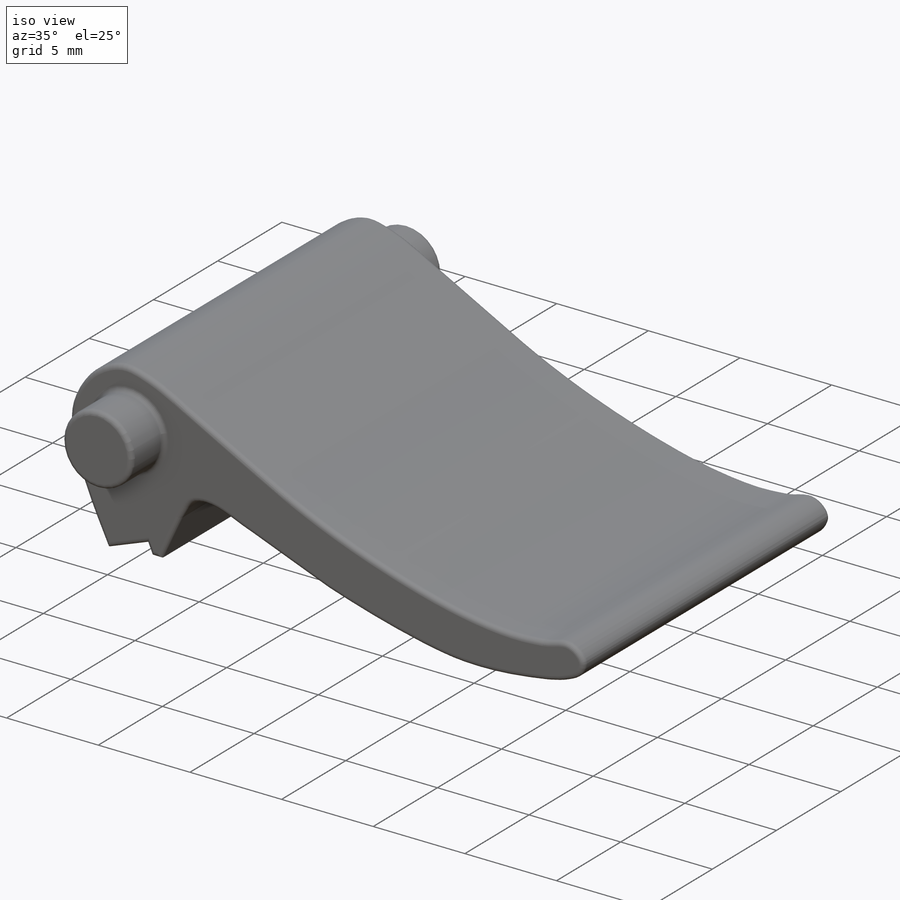
[diagram: iso view]
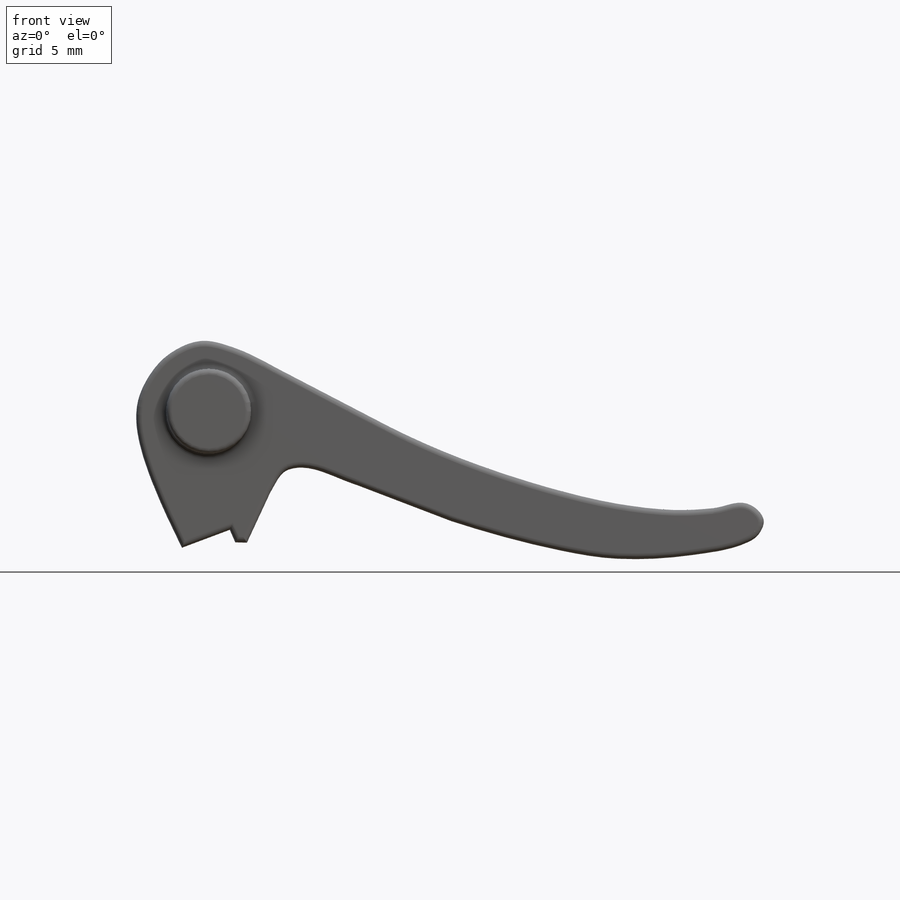
[diagram: front view]
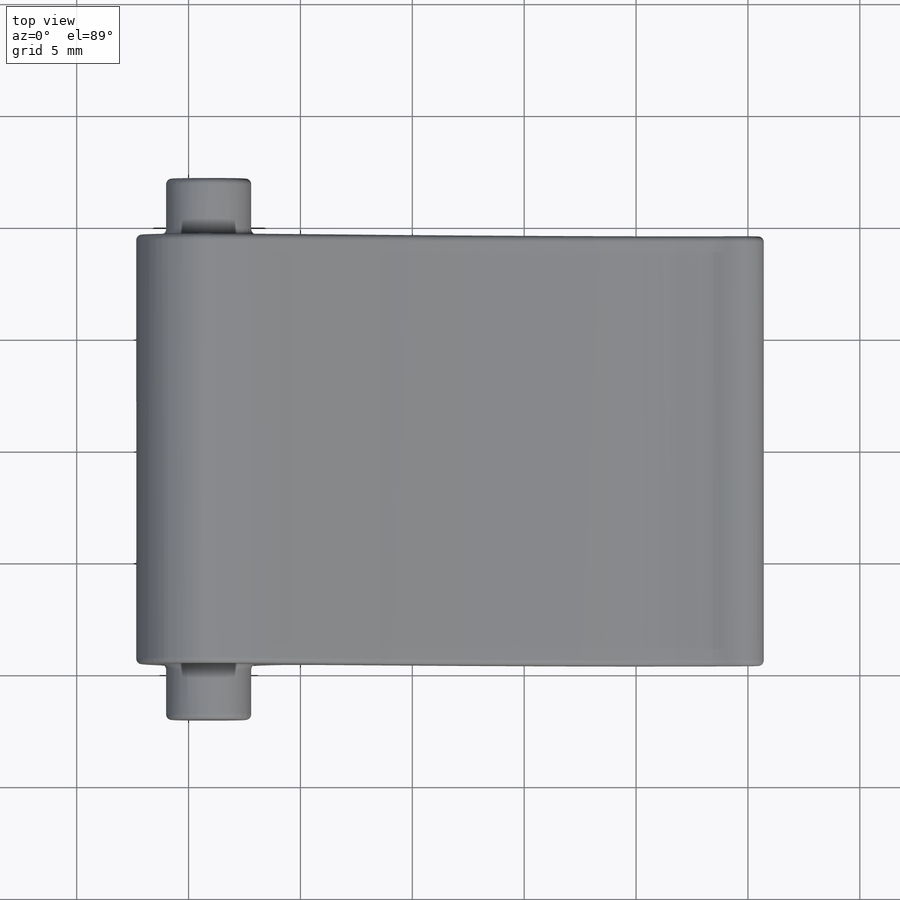
[diagram: top view]
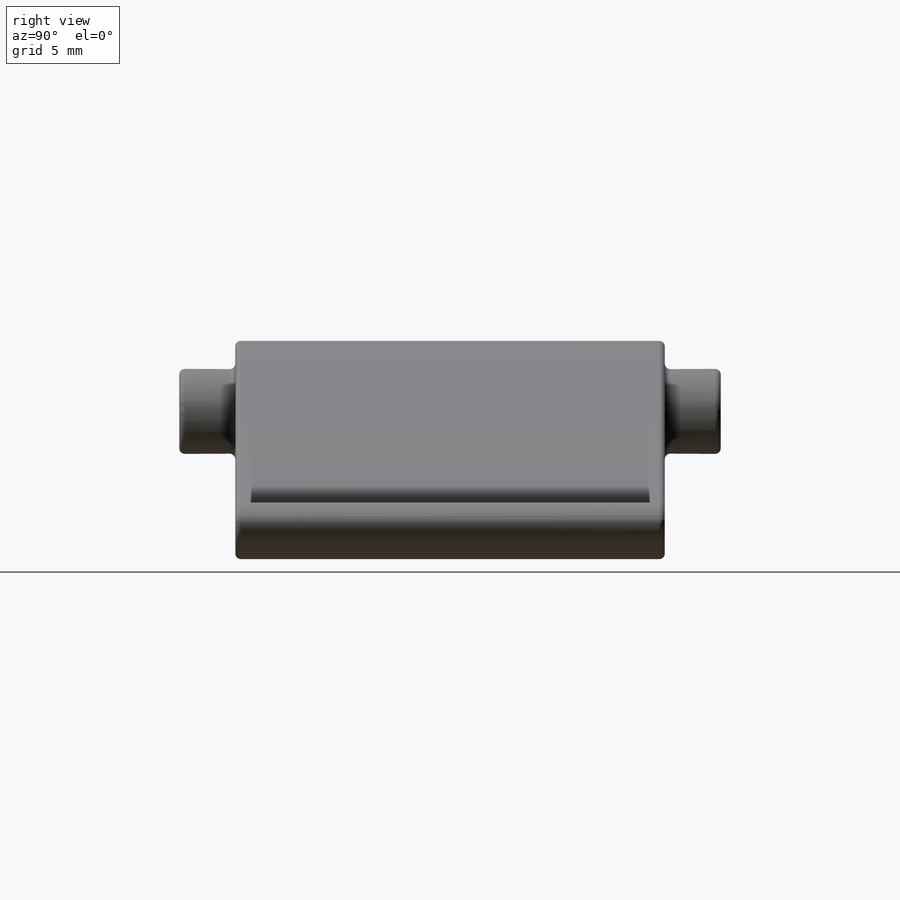
[diagram: right view]
SOLIDWORKS PART (.sldprt)
format: sldprt  version: not decoded by parser v0  size: 481,792 bytes
history: native  units: mm
features: fillet x4, sketch x2, extrude x2, material x1, mirror x1 (+13 scaffold rows collapsed)
feature tree (23):
  scaffold x13  (default folders/planes/origin — collapsed)
  material  "Material <not specified>"
  sketch  "Model"  dims[D2=3.8mm D1=28.0mm]
  extrude  "Boss-Extrude3"  Depth=19.2mm
  sketch  "Sketch4"  dims[D1=~1.704531mm]
  extrude  "Boss-Extrude6"  Depth=2.5mm
  fillet  "Fillet4"  Radius=0.25mm
  fillet  "Fillet7"  Radius=0.25mm
  mirror  "Mirror2"
  fillet  "Fillet8"  Radius=0.25mm
  fillet  "Fillet9"  Radius=0.25mm
decode coverage: 8 of 9 modeling features carry decoded parameters
note: ~ marks probable driven/reference dimensions
note: suppression state not decoded; provenance and decode notes live in map.json
